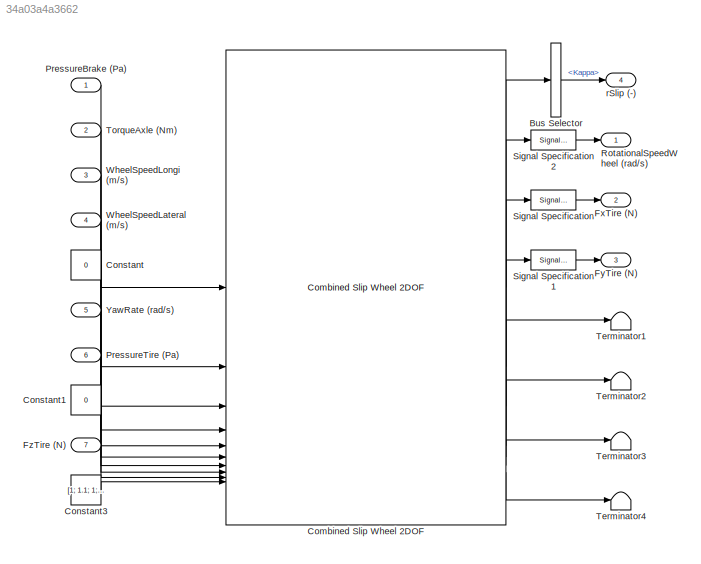
MODEL slx_34a03a4a3662
KIND model
CONFIG AbsTol = auto
CONFIG EnableMultiTasking = off
CONFIG FixedStep = Ts
CONFIG MaxStep = 0.001
CONFIG MinStep = auto
CONFIG RelTol = 1e-3
CONFIG SampleTimeConstraint = Unconstrained
CONFIG SolverName = FixedStepAuto
CONFIG StartTime = 0.0
CONFIG StopTime = 10.0
BLOCK [BusSelector] Bus Selector
  OutputSignals = Kappa
BLOCK [Reference] Combined Slip Wheel 2DOF  REF=vehdynlibtire/Combined Slip Wheel 2DOF
  SourceBlock = vehdynlibtire/Combined Slip Wheel 2DOF
  SourceType = Combined Slip Wheel 2DOF
BLOCK [Constant] Constant
  Value = 0
BLOCK [Constant] Constant1
  Value = 0
BLOCK [Constant] Constant3
  Value = [1; 1.1; 1; ones(24,1)]
BLOCK [Outport] FxTire (N)
  Port = 2
BLOCK [Outport] FyTire (N)
  Port = 3
BLOCK [Inport] FzTire (N)
  Port = 7
BLOCK [Inport] PressureBrake (Pa)
BLOCK [Inport] PressureTire (Pa)
  Port = 6
BLOCK [Outport] RotationalSpeedWheel (rad//s)
BLOCK [SignalSpecification] Signal Specification
  Dimensions = 1
BLOCK [SignalSpecification] Signal Specification1
  Dimensions = 1
BLOCK [SignalSpecification] Signal Specification2
  Dimensions = 1
BLOCK [Terminator] Terminator1
BLOCK [Terminator] Terminator2
BLOCK [Terminator] Terminator3
BLOCK [Terminator] Terminator4
BLOCK [Inport] TorqueAxle (Nm)
  Port = 2
BLOCK [Inport] WheelSpeedLateral (m//s)
  Port = 4
BLOCK [Inport] WheelSpeedLongi (m//s)
  Port = 3
BLOCK [Inport] YawRate (rad//s)
  Port = 5
BLOCK [Outport] rSlip (-)
  Port = 4
LINE Bus Selector:1 -> rSlip (-):1
LINE Combined Slip Wheel 2DOF:1 -> Bus Selector:1
LINE Combined Slip Wheel 2DOF:2 -> Signal Specification2:1
LINE Combined Slip Wheel 2DOF:3 -> Signal Specification:1
LINE Combined Slip Wheel 2DOF:4 -> Signal Specification1:1
LINE Combined Slip Wheel 2DOF:5 -> Terminator1:1
LINE Combined Slip Wheel 2DOF:6 -> Terminator2:1
LINE Combined Slip Wheel 2DOF:7 -> Terminator3:1
LINE Combined Slip Wheel 2DOF:8 -> Terminator4:1
LINE Constant1:1 -> Combined Slip Wheel 2DOF:8
LINE Constant3:1 -> Combined Slip Wheel 2DOF:10
LINE Constant:1 -> Combined Slip Wheel 2DOF:5
LINE FzTire (N):1 -> Combined Slip Wheel 2DOF:9
LINE PressureBrake (Pa):1 -> Combined Slip Wheel 2DOF:1
LINE PressureTire (Pa):1 -> Combined Slip Wheel 2DOF:7
LINE Signal Specification1:1 -> FyTire (N):1
LINE Signal Specification2:1 -> RotationalSpeedWheel (rad//s):1
LINE Signal Specification:1 -> FxTire (N):1
LINE TorqueAxle (Nm):1 -> Combined Slip Wheel 2DOF:2
LINE WheelSpeedLateral (m//s):1 -> Combined Slip Wheel 2DOF:4
LINE WheelSpeedLongi (m//s):1 -> Combined Slip Wheel 2DOF:3
LINE YawRate (rad//s):1 -> Combined Slip Wheel 2DOF:6
